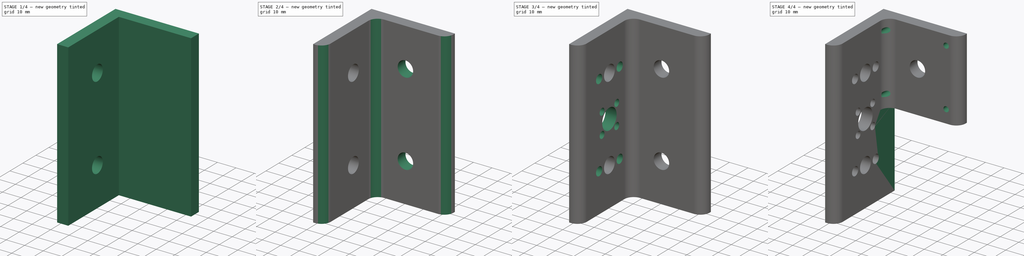
[diagram: build sequence overview — one tinted view per stage of 4, left to right]
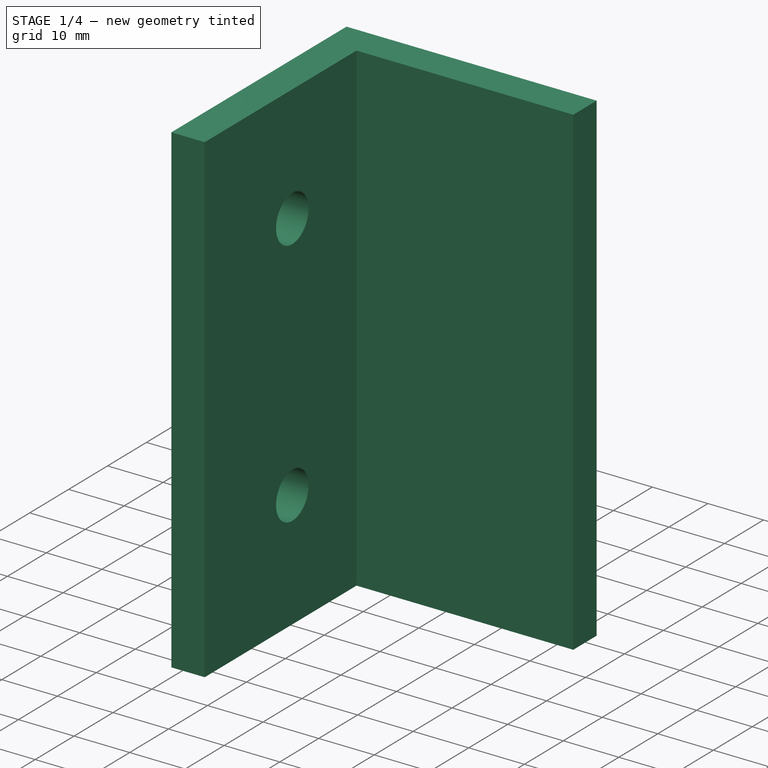
[diagram: stage 1 of 4 — iso view after this stage's code; geometry added in this stage tinted green]
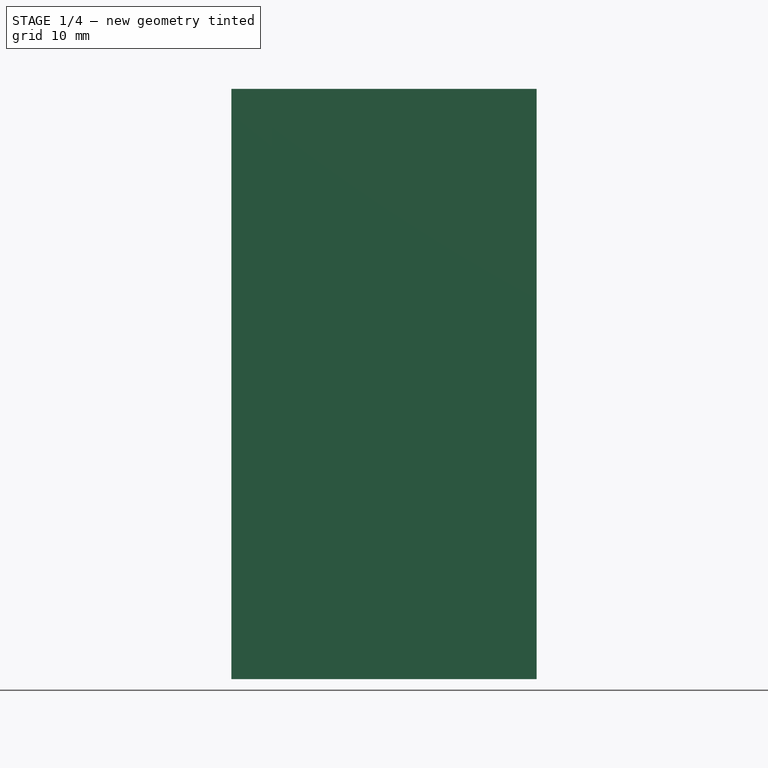
[diagram: stage 1 of 4 — front view after this stage's code; geometry added in this stage tinted green]
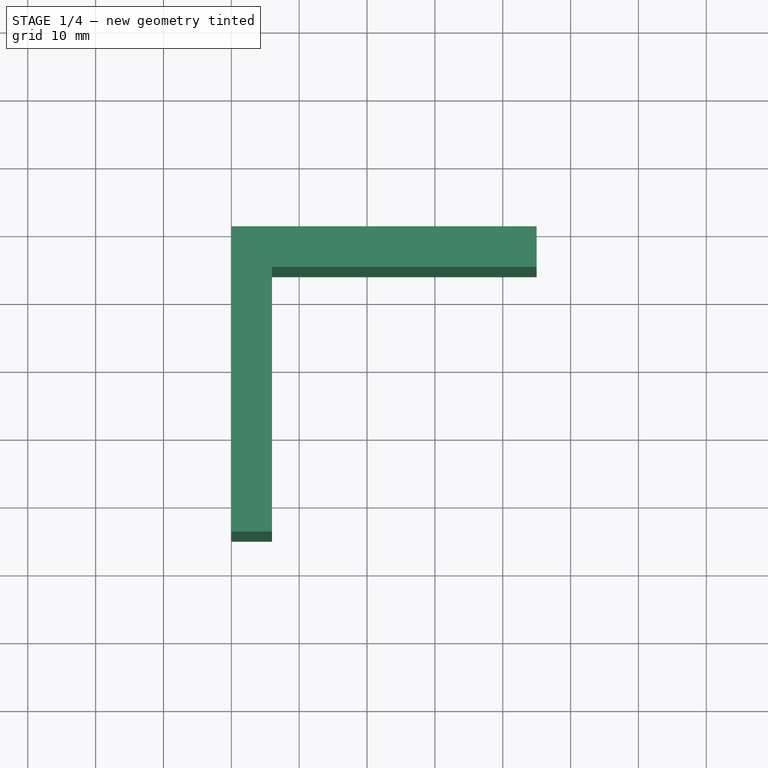
[diagram: stage 1 of 4 — top view after this stage's code; geometry added in this stage tinted green]
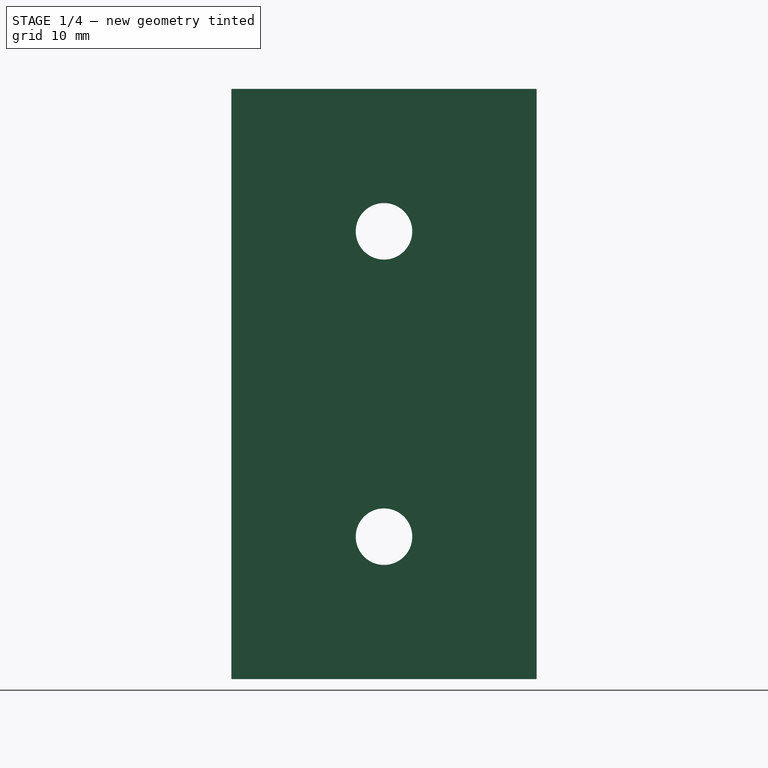
[diagram: stage 1 of 4 — right view after this stage's code; geometry added in this stage tinted green]
FCSTD DOCUMENT  (FreeCAD 0.19R)
Label: angle_machined_45-4303
License: All rights reserved
LicenseURL: http://en.wikipedia.org/wiki/All_rights_reserved
objects: Sketcher::SketchObject×8, PartDesign::Pocket×5, PartDesign::CoordinateSystem×4, PartDesign::Pad×1, PartDesign::Fillet×1, PartDesign::LinearPattern×1, PartDesign::Hole×1, PartDesign::Body×1
note: 30 computed .brp shape members not serialized (recipe doc carries the construction recipe); baked Part::Feature solids carry a one-line shape summary decoded from their .brp

FEATURE [Sketcher::SketchObject] Sketch
  FullyConstrained = true
  MapMode = 5
  Support = -> [XY_Plane]
  sketch-geometry (6):
    g0: LineSegment StartX=0 StartY=0 StartZ=0 EndX=45 EndY=0 EndZ=0
    g1: LineSegment StartX=45 StartY=0 StartZ=0 EndX=45 EndY=-6 EndZ=0
    g2: LineSegment StartX=45 StartY=-6 StartZ=0 EndX=6 EndY=-6 EndZ=0
    g3: LineSegment StartX=6 StartY=-6 StartZ=0 EndX=6 EndY=-45 EndZ=0
    g4: LineSegment StartX=6 StartY=-45 StartZ=0 EndX=0 EndY=-45 EndZ=0
    g5: LineSegment StartX=0 StartY=-45 StartZ=0 EndX=0 EndY=0 EndZ=0
  constraints (17):
    c: Coincident(g-1,g0)
    c: PointOnObject(g0,g-1)
    c: Coincident(g0,g1)
    c: Vertical(g1)
    c: Coincident(g1,g2)
    c: Horizontal(g2)
    c: Coincident(g2,g3)
    c: Vertical(g3)
    c: Coincident(g3,g4)
    c: PointOnObject(g4,g-2)
    c: Horizontal(g4)
    c: Coincident(g4,g5)
    c: Coincident(g5,g0)
    c: Equal(g1,g4)
    c: DistanceY(g1,g1) = 6
    c: DistanceX(g0,g0) = 45
    c: Equal(g0,g5)
FEATURE [PartDesign::Pad] Pad
  Direction = (1,1,1)
  Length = 87
  Length2 = 100
  Profile = -> Sketch
  Refine = true
  Type = 0
FEATURE [Sketcher::SketchObject] Sketch001
  FullyConstrained = true
  MapMode = 5
  Placement = pos=(0,0,0) rot=(0.57735,0.57735,0.57735;2.0944rad)
  Support = -> [YZ_Plane]
  sketch-geometry (2):
    g0: Circle CenterX=-22.5 CenterY=21 CenterZ=0 NormalX=0 NormalY=0 NormalZ=1 AngleXU=0 Radius=4.165
    g1: Circle CenterX=-22.5 CenterY=66 CenterZ=0 NormalX=0 NormalY=0 NormalZ=1 AngleXU=0 Radius=4.165
  constraints (6):
    c: Vertical(g1,g0)
    c: DistanceY(g0,g1) = 45
    c: Diameter(g0) = 8.33
    c: Equal(g0,g1)
    c: DistanceY(g-1,g0) = 21
    c: DistanceX(g1,g-1) = 22.5
FEATURE [PartDesign::Pocket] Pocket
  BaseFeature = -> Pad
  Length = 5
  Length2 = 100
  Midplane = true
  Profile = -> Sketch001
  Refine = true
  Type = 1
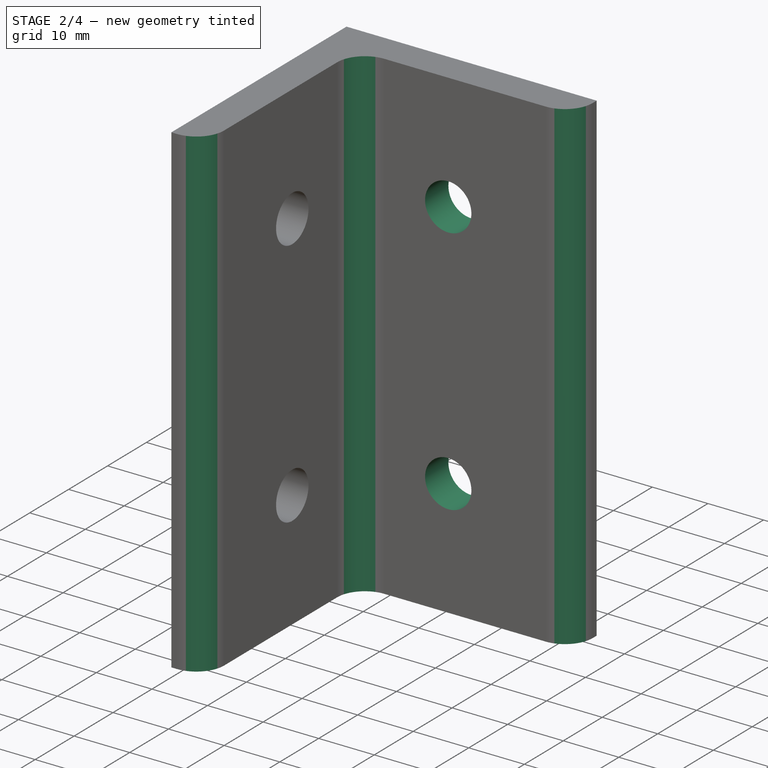
[diagram: stage 2 of 4 — iso view after this stage's code; geometry added in this stage tinted green]
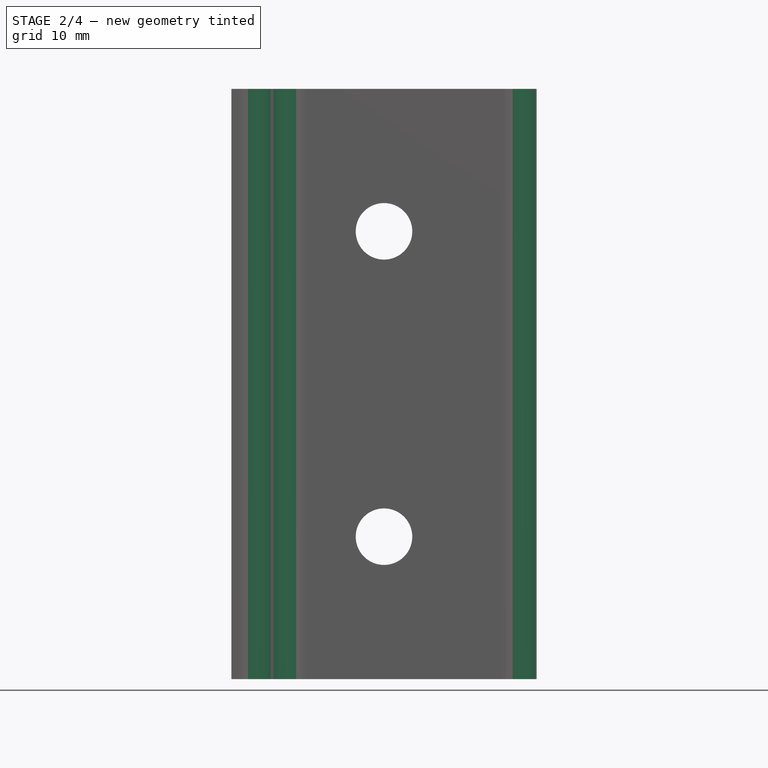
[diagram: stage 2 of 4 — front view after this stage's code; geometry added in this stage tinted green]
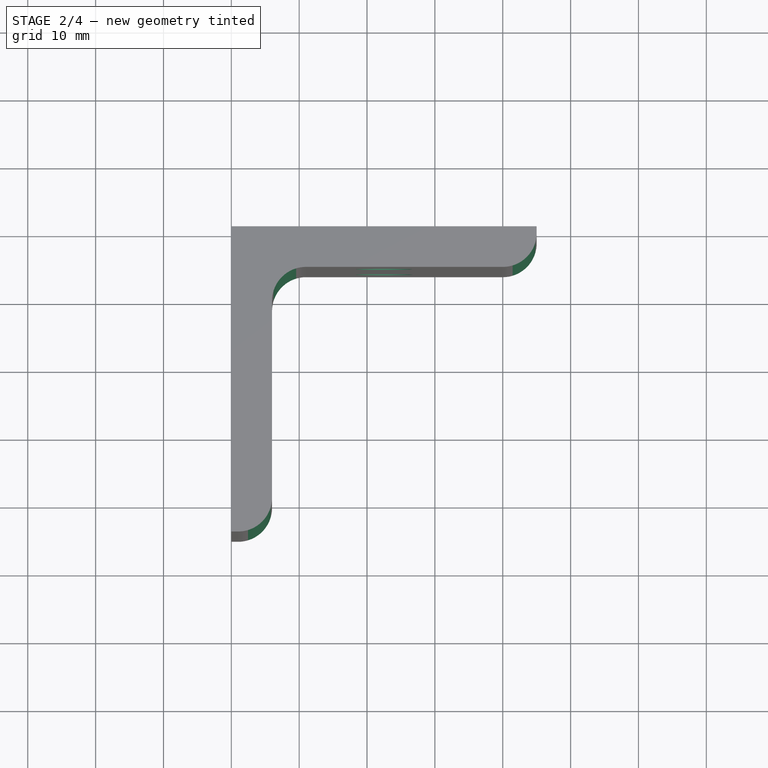
[diagram: stage 2 of 4 — top view after this stage's code; geometry added in this stage tinted green]
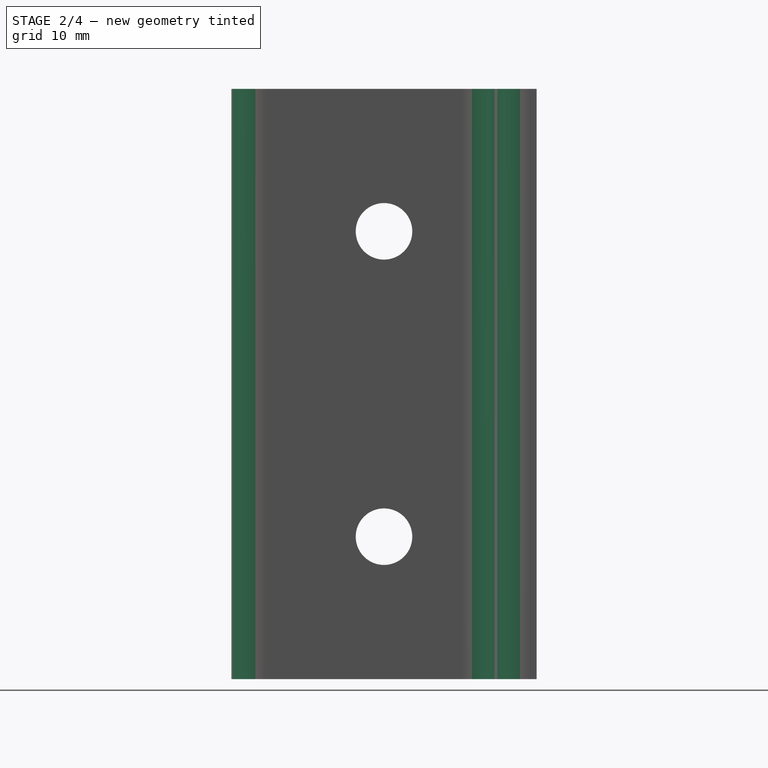
[diagram: stage 2 of 4 — right view after this stage's code; geometry added in this stage tinted green]
FEATURE [Sketcher::SketchObject] Sketch002
  FullyConstrained = true
  MapMode = 5
  Placement = pos=(0,0,0) rot=(1,0,0;1.5708rad)
  Support = -> [XZ_Plane]
  sketch-geometry (2):
    g0: Circle CenterX=22.5 CenterY=66 CenterZ=0 NormalX=0 NormalY=0 NormalZ=1 AngleXU=0 Radius=4.165
    g1: Circle CenterX=22.5 CenterY=21 CenterZ=0 NormalX=0 NormalY=0 NormalZ=1 AngleXU=0 Radius=4.165
  constraints (6):
    c: Equal(g0,g1)
    c: Vertical(g0,g1)
    c: DistanceX(g-1,g0) = 22.5
    c: DistanceY(g1,g0) = 45
    c: DistanceY(g-1,g1) = 21
    c: Diameter(g1) = 8.33
FEATURE [PartDesign::Pocket] Pocket001
  BaseFeature = -> Pocket
  Length = 5
  Length2 = 100
  Midplane = true
  Profile = -> Sketch002
  Refine = true
  Type = 1
FEATURE [PartDesign::Fillet] Fillet
  Base = -> Pocket001 [Edge25,Edge20,Edge30]
  BaseFeature = -> Pocket001
  Radius = 5
  Refine = true
  SupportTransform = false
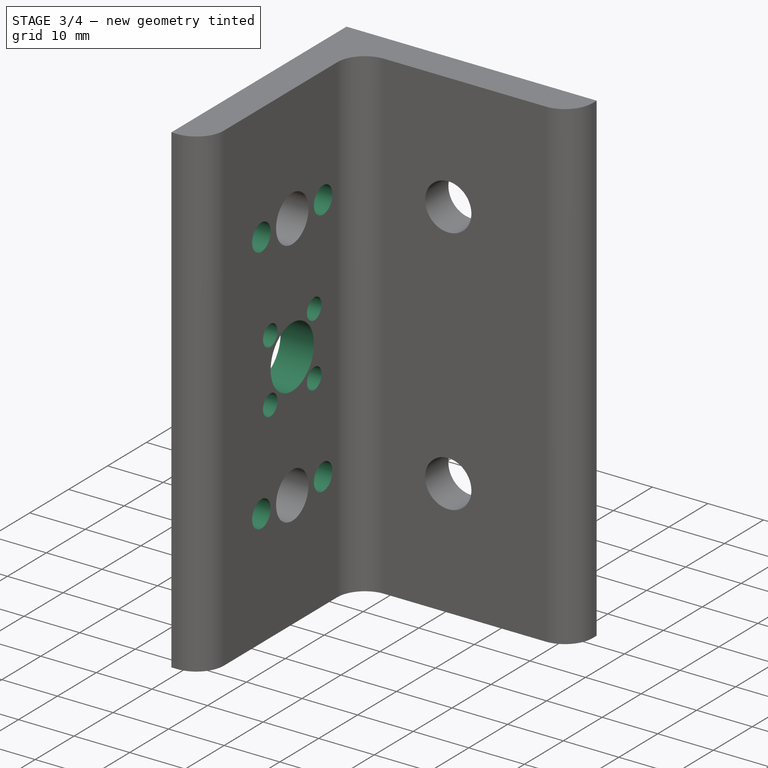
[diagram: stage 3 of 4 — iso view after this stage's code; geometry added in this stage tinted green]
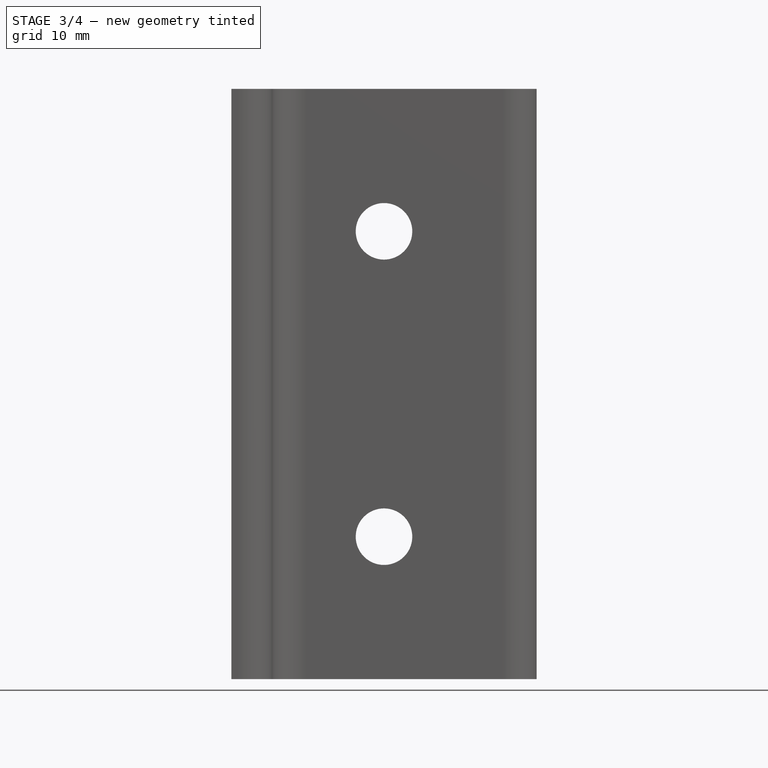
[diagram: stage 3 of 4 — front view after this stage's code; geometry added in this stage tinted green]
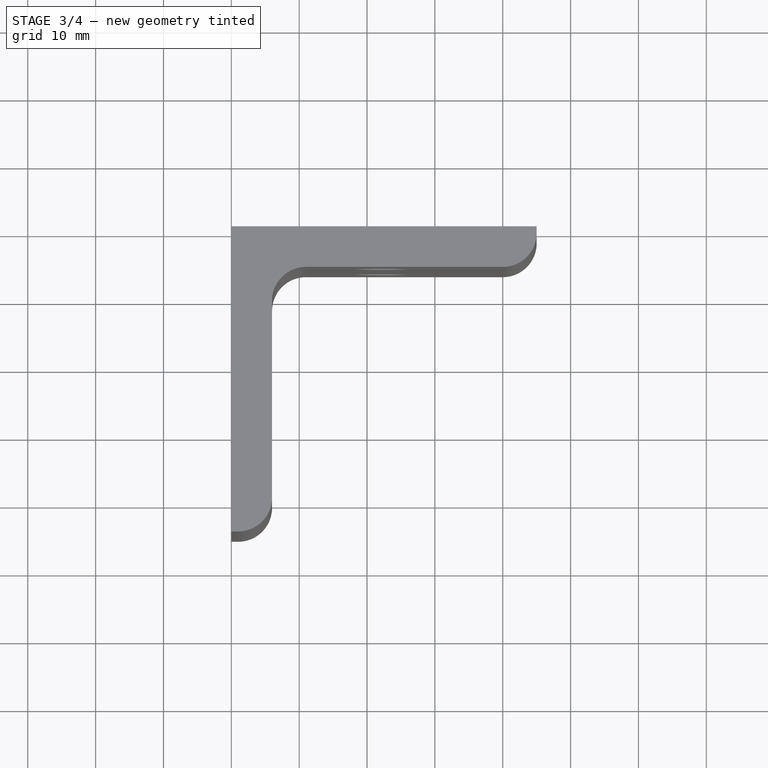
[diagram: stage 3 of 4 — top view after this stage's code; geometry added in this stage tinted green]
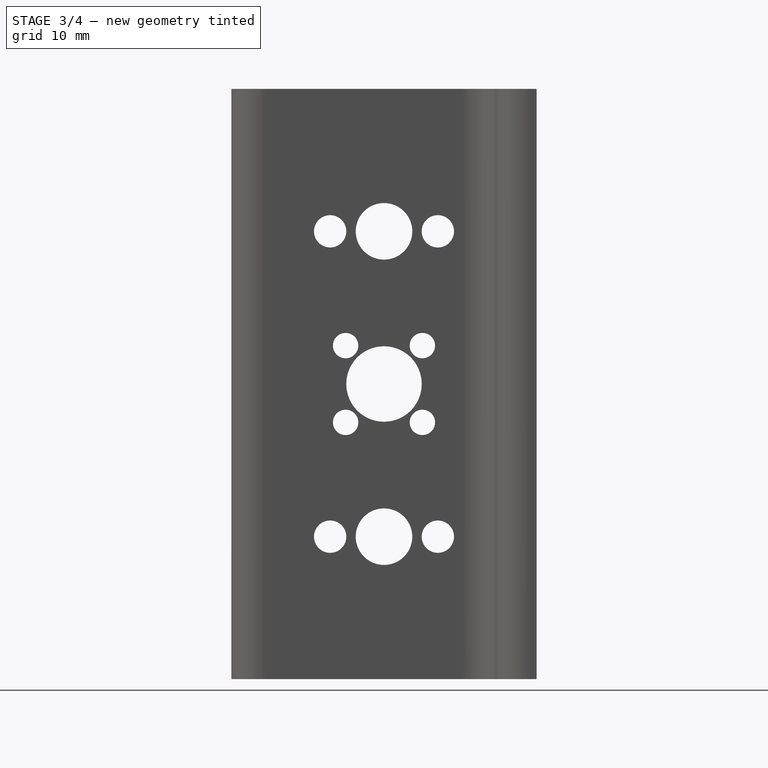
[diagram: stage 3 of 4 — right view after this stage's code; geometry added in this stage tinted green]
FEATURE [Sketcher::SketchObject] Sketch003
  ExternalGeometry = -> [Fillet]
  FullyConstrained = true
  MapMode = 5
  Placement = pos=(0,0,0) rot=(0.57735,0.57735,0.57735;2.0944rad)
  Support = -> [YZ_Plane]
  sketch-geometry (7):
    g0: Circle CenterX=-22.5 CenterY=66 CenterZ=0 NormalX=0 NormalY=0 NormalZ=1 AngleXU=0 Radius=16
    g1: Circle CenterX=-22.5 CenterY=21 CenterZ=0 NormalX=0 NormalY=0 NormalZ=1 AngleXU=0 Radius=16
    g2: LineSegment StartX=-22.5 StartY=50 StartZ=0 EndX=-22.5 EndY=37 EndZ=0
    g3: LineSegment StartX=-34.5727 StartY=55.5 StartZ=0 EndX=-10.4273 EndY=55.5 EndZ=0
    g4: LineSegment StartX=-34.5727 StartY=76.5 StartZ=0 EndX=-10.4273 EndY=76.5 EndZ=0
    g5: LineSegment StartX=-34.5727 StartY=31.5 StartZ=0 EndX=-10.4273 EndY=31.5 EndZ=0
    g6: LineSegment StartX=-34.5727 StartY=10.5 StartZ=0 EndX=-10.4273 EndY=10.5 EndZ=0
  constraints (24):
    c: Diameter(g0) = 32
    c: Coincident(g0,g-3)
    c: Equal(g1,g0)
    c: Coincident(g1,g-4)
    c: PointOnObject(g2,g0)
    c: PointOnObject(g2,g1)
    c: PointOnObject(g1,g2)
    c: PointOnObject(g0,g2)
    c: PointOnObject(g3,g0)
    c: PointOnObject(g3,g0)
    c: Horizontal(g3)
    c: PointOnObject(g4,g0)
    c: PointOnObject(g4,g0)
    c: Equal(g4,g3)
    c: Parallel(g4,g3)
    c: DistanceY(g3,g4) = 21
    c: PointOnObject(g5,g1)
    c: PointOnObject(g5,g1)
    c: PointOnObject(g6,g1)
    c: PointOnObject(g6,g1)
    c: Parallel(g5,g6)
    c: Horizontal(g5)
    c: Equal(g5,g6)
    c: DistanceY(g6,g5) = 21
FEATURE [Sketcher::SketchObject] Sketch004
  ExternalGeometry = -> [Fillet]
  FullyConstrained = true
  MapMode = 5
  Placement = pos=(0,0,0) rot=(0.57735,0.57735,0.57735;2.0944rad)
  Support = -> [YZ_Plane]
  sketch-geometry (3):
    g0: Circle CenterX=-22.5 CenterY=21 CenterZ=0 NormalX=0 NormalY=0 NormalZ=1 AngleXU=0 Radius=7.9375
    g1: Circle CenterX=-14.5625 CenterY=21 CenterZ=0 NormalX=0 NormalY=0 NormalZ=1 AngleXU=0 Radius=2.38125
    g2: Circle CenterX=-30.4375 CenterY=21 CenterZ=0 NormalX=0 NormalY=0 NormalZ=1 AngleXU=0 Radius=2.38125
  constraints (7):
    c: Coincident(g0,g-3)
    c: Diameter(g0) = 15.875
    c: Symmetric(g1,g2,g0)
    c: Diameter(g1) = 4.7625
    c: Equal(g2,g1)
    c: PointOnObject(g2,g0)
    c: Horizontal(g0,g2)
FEATURE [PartDesign::Pocket] Pocket002
  BaseFeature = -> Fillet
  Length = 5
  Length2 = 100
  Midplane = true
  Profile = -> Sketch004
  Refine = true
  Type = 1
FEATURE [PartDesign::LinearPattern] LinearPattern
  BaseFeature = -> Pocket002
  Direction = -> Z_Axis
  Length = 45
  Occurrences = 2
  Originals = -> [Pocket002]
  Refine = true
FEATURE [Sketcher::SketchObject] Sketch005
  ExternalGeometry = -> [LinearPattern]
  FullyConstrained = true
  MapMode = 5
  Placement = pos=(0,0,0) rot=(0.57735,0.57735,0.57735;2.0944rad)
  Support = -> [YZ_Plane]
  sketch-geometry (8):
    g0: Circle CenterX=-22.5 CenterY=43.5 CenterZ=0 NormalX=0 NormalY=0 NormalZ=1 AngleXU=0 Radius=5.55625
    g1: LineSegment StartX=-45 StartY=87 StartZ=0 EndX=-22.5 EndY=43.5 EndZ=0
    g2: LineSegment StartX=0 StartY=0 StartZ=0 EndX=-22.5 EndY=43.5 EndZ=0
    g3: LineSegment StartX=-22.5 StartY=43.5 StartZ=0 EndX=-28.1569 EndY=49.1569 EndZ=0
    g4: Circle CenterX=-28.1569 CenterY=49.1569 CenterZ=0 NormalX=0 NormalY=0 NormalZ=1 AngleXU=0 Radius=1.867
    g5: Circle CenterX=-16.8431 CenterY=37.8431 CenterZ=0 NormalX=0 NormalY=0 NormalZ=1 AngleXU=0 Radius=1.867
    g6: Circle CenterX=-16.8431 CenterY=49.1569 CenterZ=0 NormalX=0 NormalY=0 NormalZ=1 AngleXU=0 Radius=1.867
    g7: Circle CenterX=-28.1569 CenterY=37.8431 CenterZ=0 NormalX=0 NormalY=0 NormalZ=1 AngleXU=0 Radius=1.867
  constraints (19):
    c: Diameter(g0) = 11.1125
    c: Coincident(g1,g-3)
    c: Coincident(g1,g0)
    c: Coincident(g2,g-1)
    c: Coincident(g2,g0)
    c: Equal(g2,g1)
    c: Parallel(g2,g1)
    c: Coincident(g3,g0)
    c: Distance(g3) = 8
    c: Coincident(g4,g3)
    c: Diameter(g4) = 3.734
    c: Angle(g3,g-3) = 0.785398
    c: Diameter(g5) = 3.734
    c: Symmetric(g5,g4,g0)
    c: Equal(g7,g5)
    c: Equal(g6,g7)
    c: Symmetric(g7,g6,g0)
    c: Horizontal(g7,g5)
    c: Vertical(g5,g6)
FEATURE [PartDesign::Pocket] Pocket003
  BaseFeature = -> LinearPattern
  Length = 5
  Length2 = 100
  Midplane = true
  Profile = -> Sketch005
  Refine = true
  Type = 1
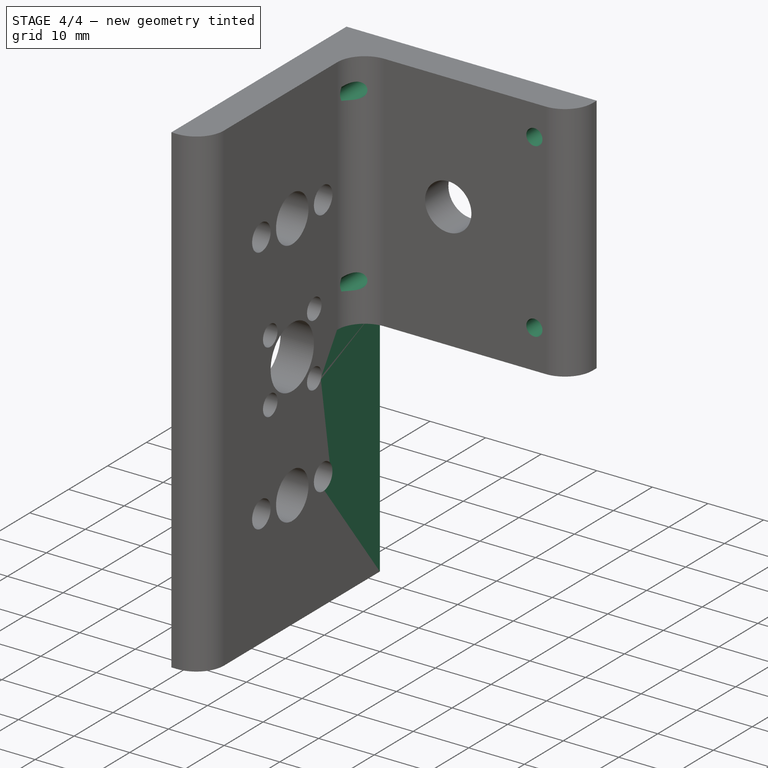
[diagram: stage 4 of 4 — iso view after this stage's code; geometry added in this stage tinted green]
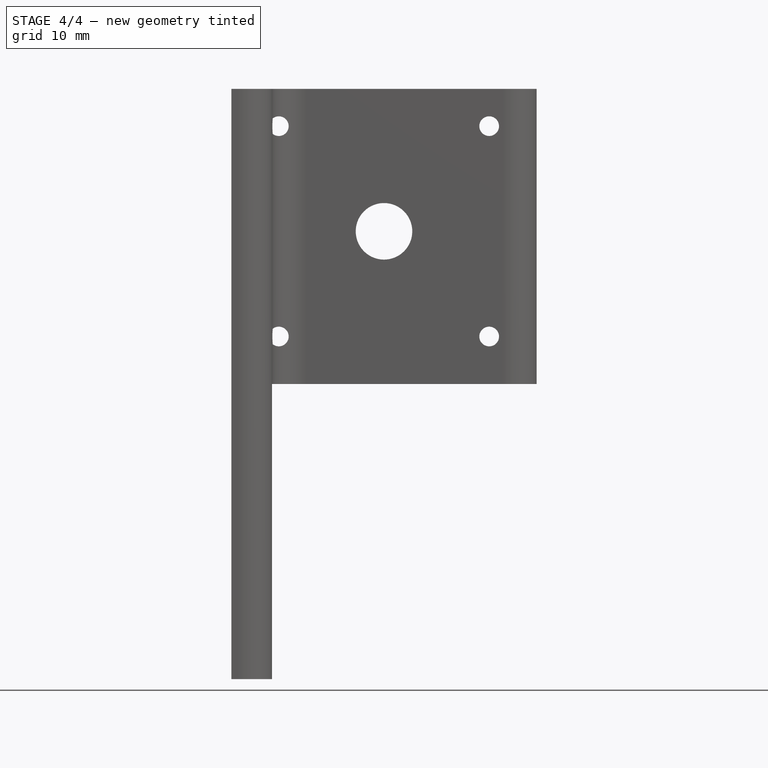
[diagram: stage 4 of 4 — front view after this stage's code; geometry added in this stage tinted green]
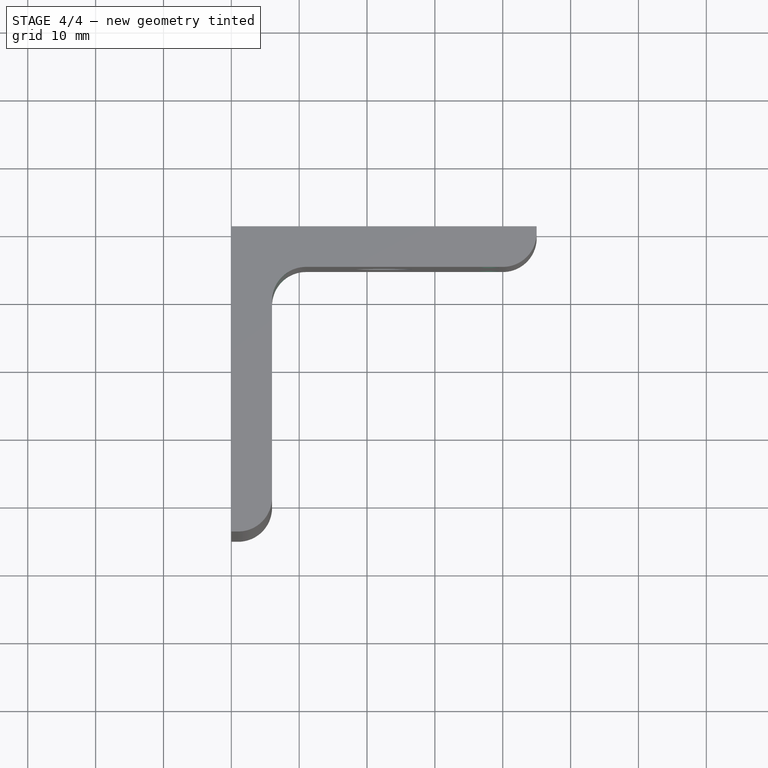
[diagram: stage 4 of 4 — top view after this stage's code; geometry added in this stage tinted green]
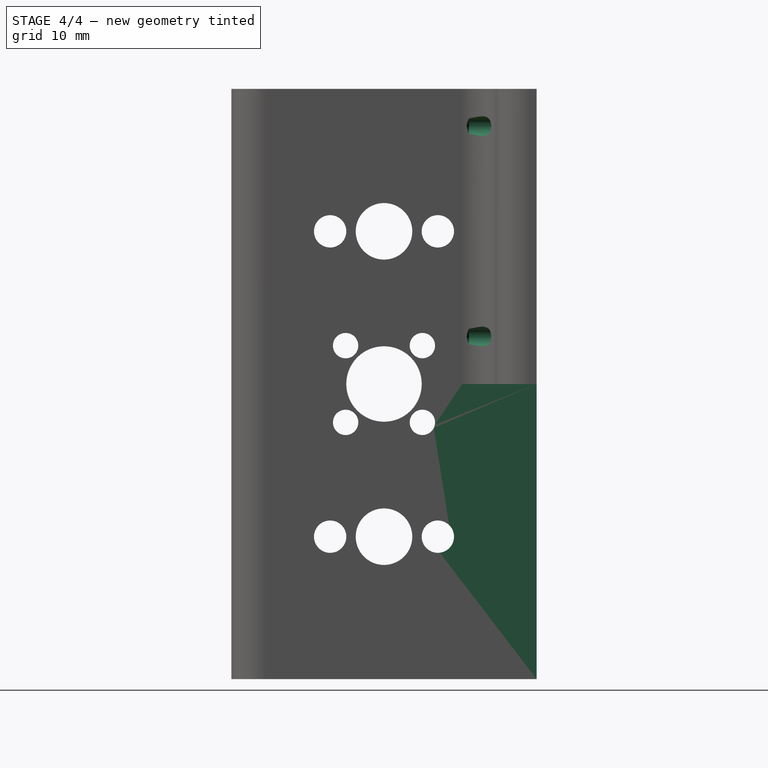
[diagram: stage 4 of 4 — right view after this stage's code; geometry added in this stage tinted green]
FEATURE [Sketcher::SketchObject] Sketch006
  ExternalGeometry = -> [Pocket003]
  FullyConstrained = true
  MapMode = 5
  Placement = pos=(0,0,0) rot=(1,0,0;1.5708rad)
  Support = -> [XZ_Plane]
  sketch-geometry (8):
    g0: GeomPoint X=7 Y=81.5 Z=0
    g1: GeomPoint X=38 Y=81.5 Z=0
    g2: GeomPoint X=38 Y=50.5 Z=0
    g3: GeomPoint X=7 Y=50.5 Z=0
    g4: Circle CenterX=7 CenterY=81.5 CenterZ=0 NormalX=0 NormalY=0 NormalZ=1 AngleXU=0 Radius=5
    g5: Circle CenterX=38 CenterY=81.5 CenterZ=0 NormalX=0 NormalY=0 NormalZ=1 AngleXU=0 Radius=5
    g6: Circle CenterX=38 CenterY=50.5 CenterZ=0 NormalX=0 NormalY=0 NormalZ=1 AngleXU=0 Radius=5
    g7: Circle CenterX=7 CenterY=50.5 CenterZ=0 NormalX=0 NormalY=0 NormalZ=1 AngleXU=0 Radius=5
  constraints (14):
    c: Symmetric(g1,g3,g-3)
    c: Symmetric(g0,g2,g-3)
    c: Vertical(g0,g3)
    c: Horizontal(g3,g2)
    c: DistanceX(g0,g1) = 31
    c: DistanceY(g2,g1) = 31
    c: Coincident(g4,g0)
    c: Coincident(g5,g1)
    c: Coincident(g6,g2)
    c: Coincident(g7,g3)
    c: Diameter(g4) = 10
    c: Equal(g5,g6)
    c: Equal(g6,g7)
    c: Equal(g5,g4)
FEATURE [PartDesign::Hole] Hole
  BaseFeature = -> Pocket003
  Depth = 10
  DepthType = 0
  Diameter = 2.9
  DrillForDepth = false
  DrillPoint = 1
  DrillPointAngle = 118
  HoleCutCountersinkAngle = 90
  HoleCutCustomValues = false
  HoleCutDepth = 3.9
  HoleCutDiameter = 6.5
  HoleCutType = 0
  ModelActualThread = false
  Profile = -> Sketch006
  Refine = true
  Reversed = true
  Tapered = false
  TaperedAngle = 90
  ThreadAngle = 60
  ThreadClass = 0
  ThreadCutOffInner = 0.0649519
  ThreadCutOffOuter = 0.129904
  ThreadDirection = 0
  ThreadFit = 0
  ThreadPitch = 0.6
  ThreadSize = 10
  ThreadType = 1
  Threaded = true
FEATURE [Sketcher::SketchObject] Sketch007
  FullyConstrained = true
  MapMode = 5
  Support = -> [XY_Plane]
  sketch-geometry (4):
    g0: LineSegment StartX=6 StartY=30 StartZ=0 EndX=66 EndY=30 EndZ=0
    g1: LineSegment StartX=66 StartY=30 StartZ=0 EndX=66 EndY=-30 EndZ=0
    g2: LineSegment StartX=66 StartY=-30 StartZ=0 EndX=6 EndY=-30 EndZ=0
    g3: LineSegment StartX=6 StartY=-30 StartZ=0 EndX=6 EndY=30 EndZ=0
  constraints (12):
    c: Coincident(g0,g1)
    c: Coincident(g1,g2)
    c: Coincident(g2,g3)
    c: Coincident(g3,g0)
    c: Horizontal(g0)
    c: Horizontal(g2)
    c: Vertical(g1)
    c: Vertical(g3)
    c: Equal(g0,g1)
    c: Distance(g2) = 60
    c: DistanceY(g-1,g0) = 30
    c: DistanceX(g-1,g2) = 6
FEATURE [PartDesign::Pocket] Pocket004
  BaseFeature = -> Hole
  Length = 43.5
  Length2 = 100
  Profile = -> Sketch007
  Refine = true
  Reversed = true
  Type = 0
FEATURE [PartDesign::CoordinateSystem] Local_CS
  AttacherType = Attacher::AttachEngine3D
  MapMode = 11
  Placement = pos=(0,-22.5,21) rot=(0.707107,0,0.707107;3.14159rad)
  Support = -> [Pocket004]
FEATURE [PartDesign::CoordinateSystem] Local_CS001
  AttacherType = Attacher::AttachEngine3D
  MapMode = 11
  Placement = pos=(0,-22.5,43.5) rot=(0.707107,0,0.707107;3.14159rad)
  Support = -> [Pocket004]
FEATURE [PartDesign::CoordinateSystem] Local_CS002
  AttacherType = Attacher::AttachEngine3D
  MapMode = 11
  Placement = pos=(0,-22.5,66) rot=(0.707107,0,0.707107;3.14159rad)
  Support = -> [Pocket004]
FEATURE [PartDesign::CoordinateSystem] Local_CS003
  AttacherType = Attacher::AttachEngine3D
  MapMode = 11
  Placement = pos=(22.5,0,66) rot=(0.57735,-0.57735,0.57735;2.0944rad)
  Support = -> [Pocket004]
FEATURE [PartDesign::Body] Body
  Group = -> [Sketch,Pad,Sketch001,Pocket,Sketch002,Pocket001,Fillet,Sketch003,Sketch004,Pocket002,LinearPattern,Sketch005,Pocket003,Sketch006,Hole,Sketch007,Pocket004,Local_CS,Local_CS001,Local_CS002,Local_CS003]
  Origin = -> Origin
  Tip = -> Pocket004
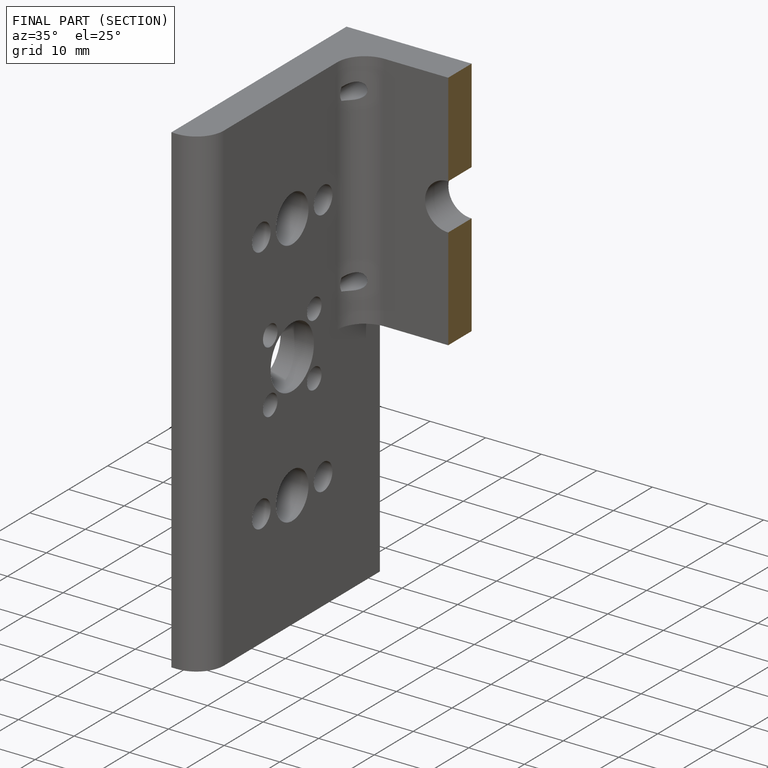
[diagram: finished part — half-section view (interior)]
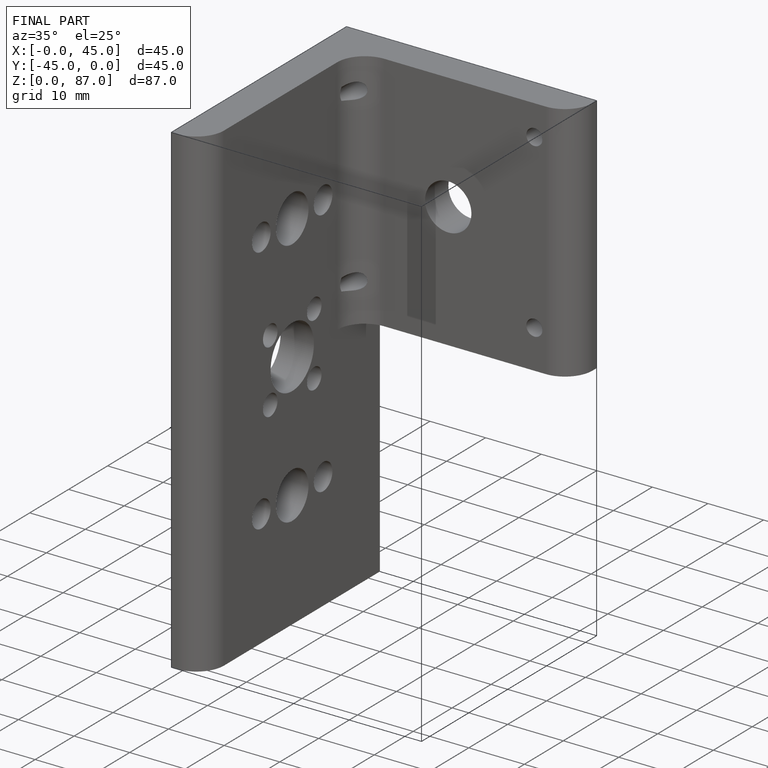
[diagram: finished part — iso view with bounding-box wireframe]
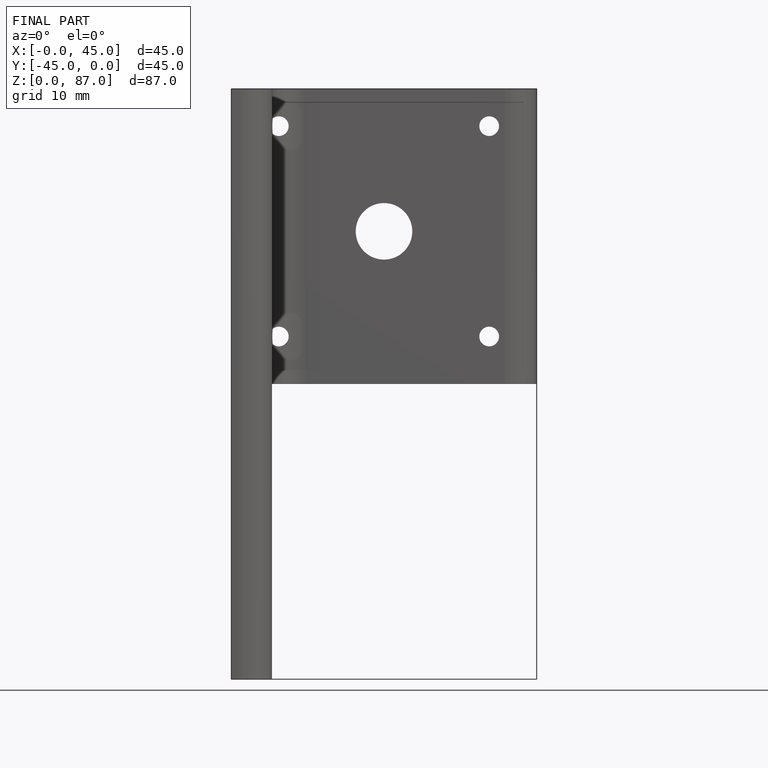
[diagram: finished part — front view with bounding-box wireframe]
